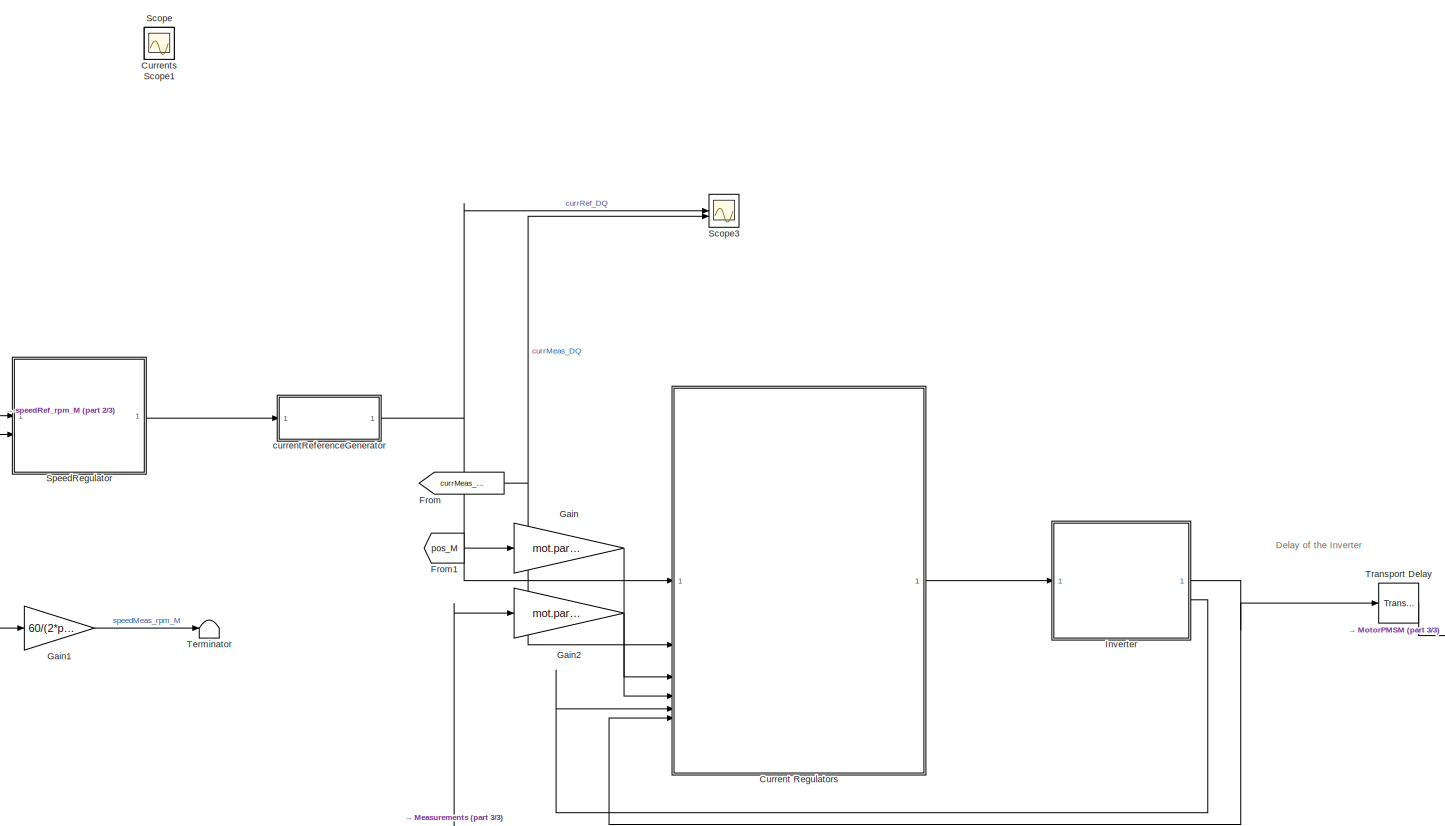
[diagram: root canvas - part 1/3, center side, full height]
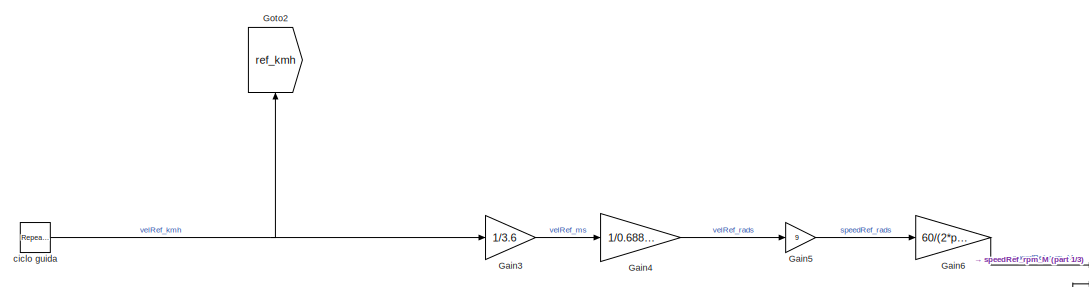
[diagram: root canvas - part 2/3, top left region]
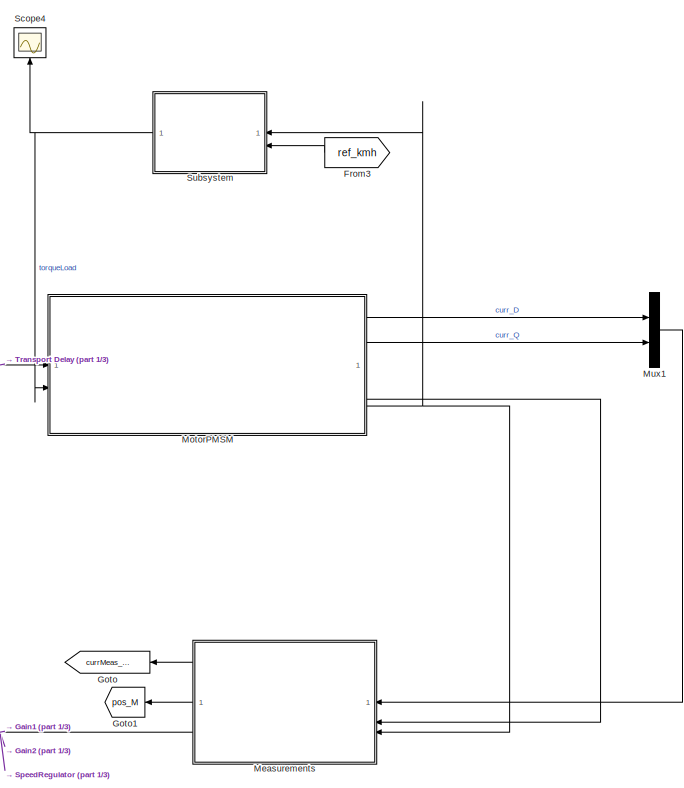
[diagram: root canvas - part 3/3, middle right region]
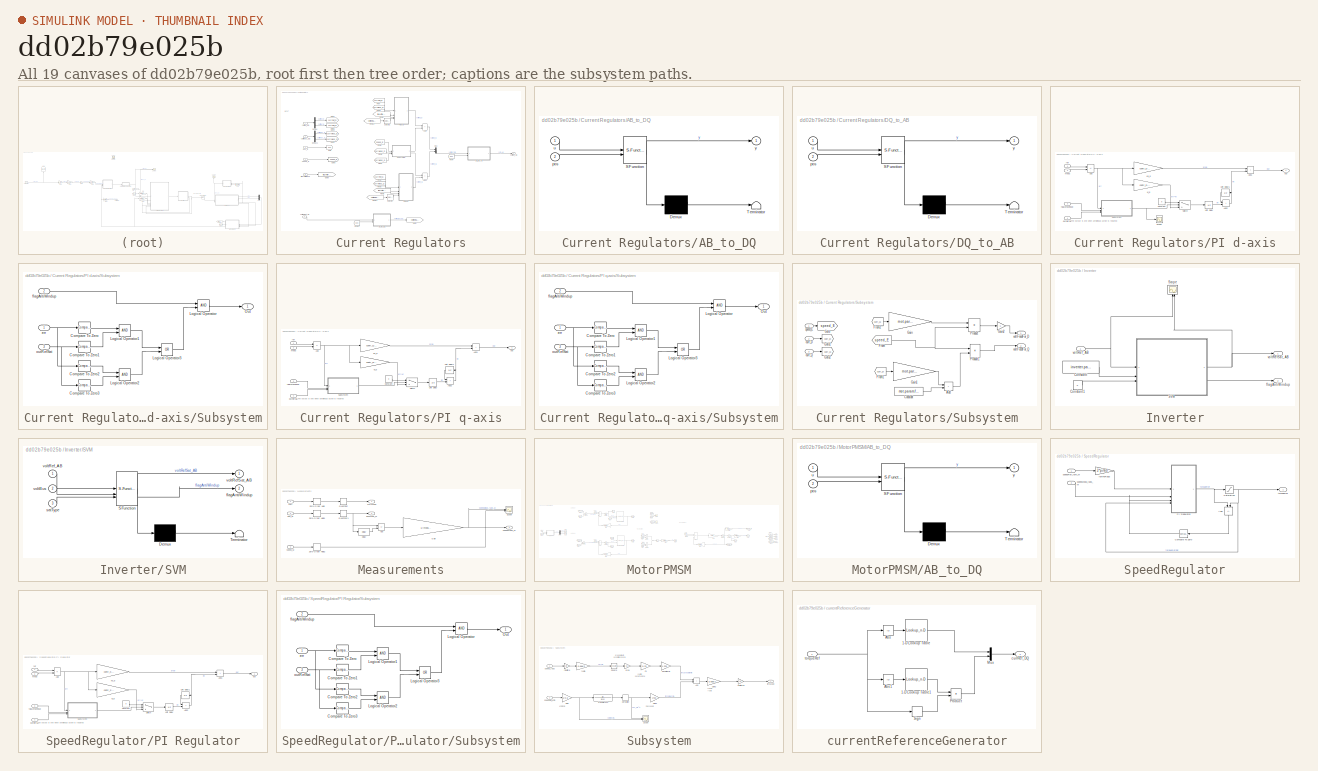
[diagram: thumbnail index - all 19 canvases of the model, root first then tree order]
MODEL slx_dd02b79e025b
KIND model
CONFIG AbsTol = auto
CONFIG EnableMultiTasking = off
CONFIG FixedStep = auto
CONFIG MaxStep = 1e-3
CONFIG MinStep = auto
CONFIG RelTol = 1e-3
CONFIG SampleTimeConstraint = Unconstrained
CONFIG SolverName = VariableStepAuto
CONFIG StartTime = 0.0
CONFIG StopTime = 30
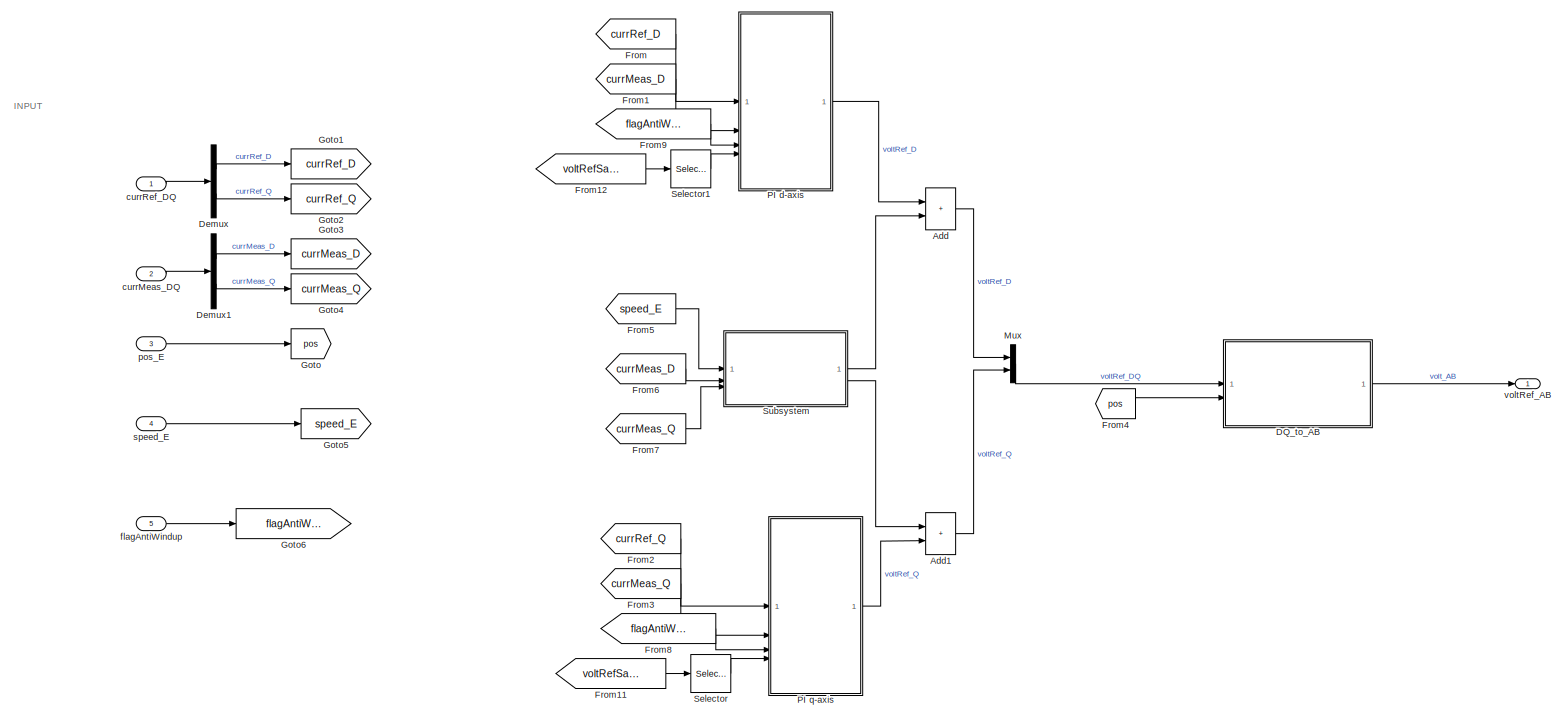
[diagram: Current Regulators - part 1/2, most of the canvas]
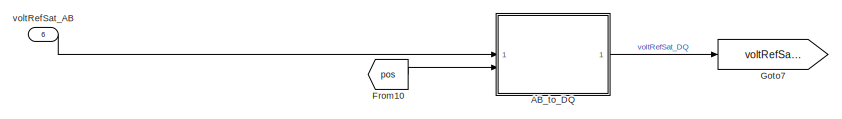
[diagram: Current Regulators - part 2/2, bottom center region]
BLOCK [SubSystem] Current Regulators
BLOCK [SubSystem] Current Regulators/AB_to_DQ
  ErrorFcn = Stateflow.Translate.translate
  PermitHierarchicalResolution = ExplicitOnly
  SFBlockType = MATLAB Function
  TreatAsAtomicUnit = on
BLOCK [Demux] Current Regulators/AB_to_DQ/ Demux 
  Outputs = 1
BLOCK [S-Function] Current Regulators/AB_to_DQ/ SFunction 
  EnableBusSupport = on
  FunctionName = sf_sfun
  PortCounts = [2 2]
  SFcnIsStateOwnerBlock = off
  SFunctionDeploymentMode = off
  Tag = Stateflow S-Function 4
BLOCK [Terminator] Current Regulators/AB_to_DQ/ Terminator 
BLOCK [Inport] Current Regulators/AB_to_DQ/pos
  Port = 2
BLOCK [Inport] Current Regulators/AB_to_DQ/u
BLOCK [Outport] Current Regulators/AB_to_DQ/y
BLOCK [Sum] Current Regulators/Add
  IconShape = rectangular
BLOCK [Sum] Current Regulators/Add1
  IconShape = rectangular
BLOCK [SubSystem] Current Regulators/DQ_to_AB
  ErrorFcn = Stateflow.Translate.translate
  PermitHierarchicalResolution = ExplicitOnly
  SFBlockType = MATLAB Function
  TreatAsAtomicUnit = on
BLOCK [Demux] Current Regulators/DQ_to_AB/ Demux 
  Outputs = 1
BLOCK [S-Function] Current Regulators/DQ_to_AB/ SFunction 
  EnableBusSupport = on
  FunctionName = sf_sfun
  PortCounts = [2 2]
  SFcnIsStateOwnerBlock = off
  SFunctionDeploymentMode = off
  Tag = Stateflow S-Function 3
BLOCK [Terminator] Current Regulators/DQ_to_AB/ Terminator 
BLOCK [Inport] Current Regulators/DQ_to_AB/pos
  Port = 2
BLOCK [Inport] Current Regulators/DQ_to_AB/u
BLOCK [Outport] Current Regulators/DQ_to_AB/y
BLOCK [Demux] Current Regulators/Demux
  Outputs = 2
BLOCK [Demux] Current Regulators/Demux1
  Outputs = 2
BLOCK [From] Current Regulators/From
  GotoTag = currRef_D
BLOCK [From] Current Regulators/From1
  GotoTag = currMeas_D
BLOCK [From] Current Regulators/From10
  GotoTag = pos
BLOCK [From] Current Regulators/From11
  GotoTag = voltRefSat_DQ
BLOCK [From] Current Regulators/From12
  GotoTag = voltRefSat_DQ
BLOCK [From] Current Regulators/From2
  GotoTag = currRef_Q
BLOCK [From] Current Regulators/From3
  GotoTag = currMeas_Q
BLOCK [From] Current Regulators/From4
  GotoTag = pos
BLOCK [From] Current Regulators/From5
  GotoTag = speed_E
BLOCK [From] Current Regulators/From6
  GotoTag = currMeas_D
BLOCK [From] Current Regulators/From7
  GotoTag = currMeas_Q
BLOCK [From] Current Regulators/From8
  GotoTag = flagAntiWIndup
BLOCK [From] Current Regulators/From9
  GotoTag = flagAntiWIndup
BLOCK [Goto] Current Regulators/Goto
  GotoTag = pos
BLOCK [Goto] Current Regulators/Goto1
  GotoTag = currRef_D
BLOCK [Goto] Current Regulators/Goto2
  GotoTag = currRef_Q
BLOCK [Goto] Current Regulators/Goto3
  GotoTag = currMeas_D
BLOCK [Goto] Current Regulators/Goto4
  GotoTag = currMeas_Q
BLOCK [Goto] Current Regulators/Goto5
  GotoTag = speed_E
BLOCK [Goto] Current Regulators/Goto6
  GotoTag = flagAntiWIndup
BLOCK [Goto] Current Regulators/Goto7
  GotoTag = voltRefSat_DQ
BLOCK [Mux] Current Regulators/Mux
  DisplayOption = bar
  Inputs = 2
BLOCK [SubSystem] Current Regulators/PI d-axis
BLOCK [Sum] Current Regulators/PI d-axis/Add
  IconShape = rectangular
  Inputs = +-
BLOCK [Sum] Current Regulators/PI d-axis/Add1
  IconShape = rectangular
BLOCK [Sum] Current Regulators/PI d-axis/Add2
  IconShape = rectangular
BLOCK [Constant] Current Regulators/PI d-axis/Constant
  Value = 0
BLOCK [Scope] Current Regulators/PI d-axis/Scope
  Floating = off
  NumInputPorts = 1
  ScopeSpecificationString = Simulink.scopes.TimeScopeBlockCfg('CurrentConfiguration', extmgr.ConfigurationSet(extmgr.Configuration('Core','General UI',true),extmgr.Configuration('Core','Source UI',true),extmgr.Configuration('Sources','WiredSimulink',true,'DataLoggingVariableName','ScopeData2'),extmgr.Configuration('Visuals','Time Domain',true,'SerializedDisplays',{struct('MinYLimReal','0.91289','MaxYLimReal','1.07157','YLabe...<+1528ch>
BLOCK [SubSystem] Current Regulators/PI d-axis/Subsystem
BLOCK [Reference] Current Regulators/PI d-axis/Subsystem/Compare To Zero  REF=simulink/Logic and Bit
Operations/Compare
To Zero
  SourceBlock = simulink/Logic and Bit\nOperations/Compare\nTo Zero
  SourceType = Compare To Zero
BLOCK [Reference] Current Regulators/PI d-axis/Subsystem/Compare To Zero1  REF=simulink/Logic and Bit
Operations/Compare
To Zero
  SourceBlock = simulink/Logic and Bit\nOperations/Compare\nTo Zero
  SourceType = Compare To Zero
BLOCK [Reference] Current Regulators/PI d-axis/Subsystem/Compare To Zero2  REF=simulink/Logic and Bit
Operations/Compare
To Zero
  SourceBlock = simulink/Logic and Bit\nOperations/Compare\nTo Zero
  SourceType = Compare To Zero
BLOCK [Reference] Current Regulators/PI d-axis/Subsystem/Compare To Zero3  REF=simulink/Logic and Bit
Operations/Compare
To Zero
  SourceBlock = simulink/Logic and Bit\nOperations/Compare\nTo Zero
  SourceType = Compare To Zero
BLOCK [Logic] Current Regulators/PI d-axis/Subsystem/Logical Operator
  AllPortsSameDT = off
  OutDataTypeStr = boolean
BLOCK [Logic] Current Regulators/PI d-axis/Subsystem/Logical Operator1
  AllPortsSameDT = off
  OutDataTypeStr = boolean
BLOCK [Logic] Current Regulators/PI d-axis/Subsystem/Logical Operator2
  AllPortsSameDT = off
  OutDataTypeStr = boolean
BLOCK [Logic] Current Regulators/PI d-axis/Subsystem/Logical Operator3
  AllPortsSameDT = off
  Operator = OR
  OutDataTypeStr = boolean
BLOCK [Outport] Current Regulators/PI d-axis/Subsystem/Out
BLOCK [Inport] Current Regulators/PI d-axis/Subsystem/err
BLOCK [Inport] Current Regulators/PI d-axis/Subsystem/flagAntiWindup
  Port = 2
BLOCK [Inport] Current Regulators/PI d-axis/Subsystem/outRefSat
  Port = 3
BLOCK [Switch] Current Regulators/PI d-axis/Switch
  Criteria = u2 > Threshold
  InputSameDT = off
  SaturateOnIntegerOverflow = off
  Threshold = 0.1
BLOCK [UnitDelay] Current Regulators/PI d-axis/Unit Delay
  HasFrameUpgradeWarning = on
  SampleTime = -1
BLOCK [UnitDelay] Current Regulators/PI d-axis/Unit Delay1
  HasFrameUpgradeWarning = on
  NameLocation = top
  SampleTime = -1
BLOCK [Inport] Current Regulators/PI d-axis/flagAntiWindup
  Port = 3
BLOCK [Gain] Current Regulators/PI d-axis/ki_d
  Gain = contr_D.param.ki
BLOCK [Gain] Current Regulators/PI d-axis/kp_d
  Gain = contr_D.param.kp
BLOCK [Inport] Current Regulators/PI d-axis/meas
  Port = 2
BLOCK [Outport] Current Regulators/PI d-axis/out
BLOCK [Inport] Current Regulators/PI d-axis/outRefSat
  Port = 4
BLOCK [Inport] Current Regulators/PI d-axis/ref
BLOCK [SubSystem] Current Regulators/PI q-axis
BLOCK [Sum] Current Regulators/PI q-axis/Add
  IconShape = rectangular
  Inputs = +-
BLOCK [Sum] Current Regulators/PI q-axis/Add1
  IconShape = rectangular
BLOCK [Sum] Current Regulators/PI q-axis/Add2
  IconShape = rectangular
BLOCK [Constant] Current Regulators/PI q-axis/Constant
  Value = 0
BLOCK [SubSystem] Current Regulators/PI q-axis/Subsystem
BLOCK [Reference] Current Regulators/PI q-axis/Subsystem/Compare To Zero  REF=simulink/Logic and Bit
Operations/Compare
To Zero
  SourceBlock = simulink/Logic and Bit\nOperations/Compare\nTo Zero
  SourceType = Compare To Zero
BLOCK [Reference] Current Regulators/PI q-axis/Subsystem/Compare To Zero1  REF=simulink/Logic and Bit
Operations/Compare
To Zero
  SourceBlock = simulink/Logic and Bit\nOperations/Compare\nTo Zero
  SourceType = Compare To Zero
BLOCK [Reference] Current Regulators/PI q-axis/Subsystem/Compare To Zero2  REF=simulink/Logic and Bit
Operations/Compare
To Zero
  SourceBlock = simulink/Logic and Bit\nOperations/Compare\nTo Zero
  SourceType = Compare To Zero
BLOCK [Reference] Current Regulators/PI q-axis/Subsystem/Compare To Zero3  REF=simulink/Logic and Bit
Operations/Compare
To Zero
  SourceBlock = simulink/Logic and Bit\nOperations/Compare\nTo Zero
  SourceType = Compare To Zero
BLOCK [Logic] Current Regulators/PI q-axis/Subsystem/Logical Operator
  AllPortsSameDT = off
  OutDataTypeStr = boolean
BLOCK [Logic] Current Regulators/PI q-axis/Subsystem/Logical Operator1
  AllPortsSameDT = off
  OutDataTypeStr = boolean
BLOCK [Logic] Current Regulators/PI q-axis/Subsystem/Logical Operator2
  AllPortsSameDT = off
  OutDataTypeStr = boolean
BLOCK [Logic] Current Regulators/PI q-axis/Subsystem/Logical Operator3
  AllPortsSameDT = off
  Operator = OR
  OutDataTypeStr = boolean
BLOCK [Outport] Current Regulators/PI q-axis/Subsystem/Out
BLOCK [Inport] Current Regulators/PI q-axis/Subsystem/err
BLOCK [Inport] Current Regulators/PI q-axis/Subsystem/flagAntiWindup
  Port = 2
BLOCK [Inport] Current Regulators/PI q-axis/Subsystem/outRefSat
  Port = 3
BLOCK [Switch] Current Regulators/PI q-axis/Switch
  Criteria = u2 > Threshold
  InputSameDT = off
  SaturateOnIntegerOverflow = off
  Threshold = 0.1
BLOCK [UnitDelay] Current Regulators/PI q-axis/Unit Delay
  HasFrameUpgradeWarning = on
  SampleTime = -1
BLOCK [UnitDelay] Current Regulators/PI q-axis/Unit Delay1
  HasFrameUpgradeWarning = on
  NameLocation = top
  SampleTime = -1
BLOCK [Inport] Current Regulators/PI q-axis/flagAntiWindup
  Port = 3
BLOCK [Gain] Current Regulators/PI q-axis/ki_d
  Gain = contr_Q.param.ki
BLOCK [Gain] Current Regulators/PI q-axis/kp_d
  Gain = contr_Q.param.kp
BLOCK [Inport] Current Regulators/PI q-axis/meas
  Port = 2
BLOCK [Outport] Current Regulators/PI q-axis/out
BLOCK [Inport] Current Regulators/PI q-axis/outRefSat
  Port = 4
BLOCK [Inport] Current Regulators/PI q-axis/ref
BLOCK [Selector] Current Regulators/Selector
  IndexOptions = Index vector (dialog)
  Indices = [2]
  InputPortWidth = 2
  OutputSizes = 1
BLOCK [Selector] Current Regulators/Selector1
  IndexOptions = Index vector (dialog)
  Indices = [1]
  InputPortWidth = 2
  OutputSizes = 1
BLOCK [SubSystem] Current Regulators/Subsystem
BLOCK [Sum] Current Regulators/Subsystem/Add
  IconShape = rectangular
BLOCK [Constant] Current Regulators/Subsystem/Constant
  Value = mot.param.fluxPM
BLOCK [From] Current Regulators/Subsystem/From
  GotoTag = speed_E
BLOCK [From] Current Regulators/Subsystem/From1
  GotoTag = curr_D
BLOCK [From] Current Regulators/Subsystem/From2
  GotoTag = curr_Q
BLOCK [Gain] Current Regulators/Subsystem/Gain
  Gain = mot.param.indApp_Q
BLOCK [Gain] Current Regulators/Subsystem/Gain1
  Gain = mot.param.indApp_D
BLOCK [Gain] Current Regulators/Subsystem/Gain2
  Gain = -1
BLOCK [Goto] Current Regulators/Subsystem/Goto
  GotoTag = speed_E
BLOCK [Goto] Current Regulators/Subsystem/Goto1
  GotoTag = curr_D
BLOCK [Goto] Current Regulators/Subsystem/Goto2
  GotoTag = curr_Q
BLOCK [Product] Current Regulators/Subsystem/Product
BLOCK [Product] Current Regulators/Subsystem/Product1
BLOCK [Inport] Current Regulators/Subsystem/curr_D
  Port = 2
BLOCK [Inport] Current Regulators/Subsystem/curr_Q
  Port = 3
BLOCK [Inport] Current Regulators/Subsystem/speed_E
BLOCK [Outport] Current Regulators/Subsystem/voltFeedFor_D
BLOCK [Outport] Current Regulators/Subsystem/voltFeedFor_Q
  Port = 2
BLOCK [Inport] Current Regulators/currMeas_DQ
  Port = 2
BLOCK [Inport] Current Regulators/currRef_DQ
BLOCK [Inport] Current Regulators/flagAntiWindup
  Port = 5
BLOCK [Inport] Current Regulators/pos_E
  Port = 3
BLOCK [Inport] Current Regulators/speed_E
  Port = 4
BLOCK [Inport] Current Regulators/voltRefSat_AB
  Port = 6
BLOCK [Outport] Current Regulators/voltRef_AB
BLOCK [Scope] Currents
  Floating = off
  IOType = viewer
  NumInputPorts = 1
  ScopeSpecificationString = Simulink.scopes.TimeScopeBlockCfg('CurrentConfiguration', extmgr.ConfigurationSet(extmgr.Configuration('Core','General UI',true),extmgr.Configuration('Core','Source UI',true),extmgr.Configuration('Sources','WiredSimulink',true,'DataLoggingVariableName','ScopeData2'),extmgr.Configuration('Visuals','Time Domain',true,'SerializedDisplays',{struct('MinYLimReal','-0.46656','MaxYLimReal','1.58376','YLab...<+2189ch>
BLOCK [From] From
  GotoTag = currMeas_DQ
BLOCK [From] From1
  GotoTag = pos_M
BLOCK [From] From3
  GotoTag = ref_kmh
  NameLocation = top
BLOCK [Gain] Gain
  Gain = mot.param.pp
BLOCK [Gain] Gain1
  Gain = 60/(2*pi)
BLOCK [Gain] Gain2
  Gain = mot.param.pp
BLOCK [Gain] Gain3
  Gain = 1/3.6
BLOCK [Gain] Gain4
  Gain = 1/0.688/2
BLOCK [Gain] Gain5
  Gain = 9
BLOCK [Gain] Gain6
  Gain = 60/(2*pi)
BLOCK [Goto] Goto
  GotoTag = currMeas_DQ
  NameLocation = top
BLOCK [Goto] Goto1
  GotoTag = pos_M
  NameLocation = top
BLOCK [Goto] Goto2
  GotoTag = ref_kmh
  NameLocation = right
BLOCK [SubSystem] Inverter
BLOCK [Constant] Inverter/Constant
  Value = inverter.param.voltBus
BLOCK [Constant] Inverter/Constant1
  Value = 0
BLOCK [SubSystem] Inverter/SVM
  ErrorFcn = Stateflow.Translate.translate
  PermitHierarchicalResolution = ExplicitOnly
  SFBlockType = MATLAB Function
  TreatAsAtomicUnit = on
BLOCK [Demux] Inverter/SVM/ Demux 
  Outputs = 1
BLOCK [S-Function] Inverter/SVM/ SFunction 
  EnableBusSupport = on
  FunctionName = sf_sfun
  Parameters = inverter
  PortCounts = [3 3]
  SFcnIsStateOwnerBlock = off
  SFunctionDeploymentMode = off
  Tag = Stateflow S-Function 2
BLOCK [Terminator] Inverter/SVM/ Terminator 
BLOCK [Outport] Inverter/SVM/flagAntiWindup
  Port = 2
BLOCK [Inport] Inverter/SVM/satType
  Port = 3
BLOCK [Inport] Inverter/SVM/voltBus
  Port = 2
BLOCK [Outport] Inverter/SVM/voltRefSat_AB
BLOCK [Inport] Inverter/SVM/voltRef_AB
BLOCK [Scope] Inverter/Scope
  Floating = off
  NameLocation = right
  NumInputPorts = 2
  ScopeSpecificationString = Simulink.scopes.TimeScopeBlockCfg('CurrentConfiguration', extmgr.ConfigurationSet(extmgr.Configuration('Core','General UI',true),extmgr.Configuration('Core','Source UI',true),extmgr.Configuration('Sources','WiredSimulink',true,'DataLoggingVariableName','ScopeData1'),extmgr.Configuration('Visuals','Time Domain',true,'SerializedDisplays',{struct('MinYLimReal','-437.86301','MaxYLimReal','479.85412','...<+1670ch>
BLOCK [Outport] Inverter/flagAntiWindup
  Port = 2
BLOCK [Outport] Inverter/voltRefSat_AB
BLOCK [Inport] Inverter/voltRef_AB
BLOCK [SubSystem] Measurements
  NameLocation = top
BLOCK [Sum] Measurements/Add
  IconShape = rectangular
  Inputs = +-
BLOCK [Delay] Measurements/Delay
  DelayLength = meas.speed.n_tabs
  InputPortMap = u0
BLOCK [Gain] Measurements/Gain
  Gain = 1/(meas.speed.n_tabs*inverter.param.timePWM)
BLOCK [Quantizer] Measurements/Quantizer
  QuantizationInterval = meas.curr.quant
BLOCK [Quantizer] Measurements/Quantizer1
  QuantizationInterval = meas.pos.quant
BLOCK [Scope] Measurements/Scope
  Floating = off
  NumInputPorts = 2
  ScopeSpecificationString = Simulink.scopes.TimeScopeBlockCfg('CurrentConfiguration', extmgr.ConfigurationSet(extmgr.Configuration('Core','General UI',true),extmgr.Configuration('Core','Source UI',true),extmgr.Configuration('Sources','WiredSimulink',true,'DataLoggingVariableName','ScopeData1'),extmgr.Configuration('Visuals','Time Domain',true,'SerializedDisplays',{struct('MinYLimReal','25.49394','MaxYLimReal','95.83458','YLa...<+1574ch>
BLOCK [ZeroOrderHold] Measurements/Zero-Order Hold
  SampleTime = inverter.param.timePWM
BLOCK [ZeroOrderHold] Measurements/Zero-Order Hold1
  SampleTime = inverter.param.timePWM
BLOCK [ZeroOrderHold] Measurements/Zero-Order Hold2
  SampleTime = inverter.param.timePWM
BLOCK [Inport] Measurements/curr
BLOCK [Outport] Measurements/currMeas
BLOCK [Outport] Measurements/posMeas_M
  Port = 2
BLOCK [Inport] Measurements/pos_M
  Port = 2
BLOCK [Outport] Measurements/speedMeas_M
  Port = 3
BLOCK [Inport] Measurements/speed_M
  Port = 3
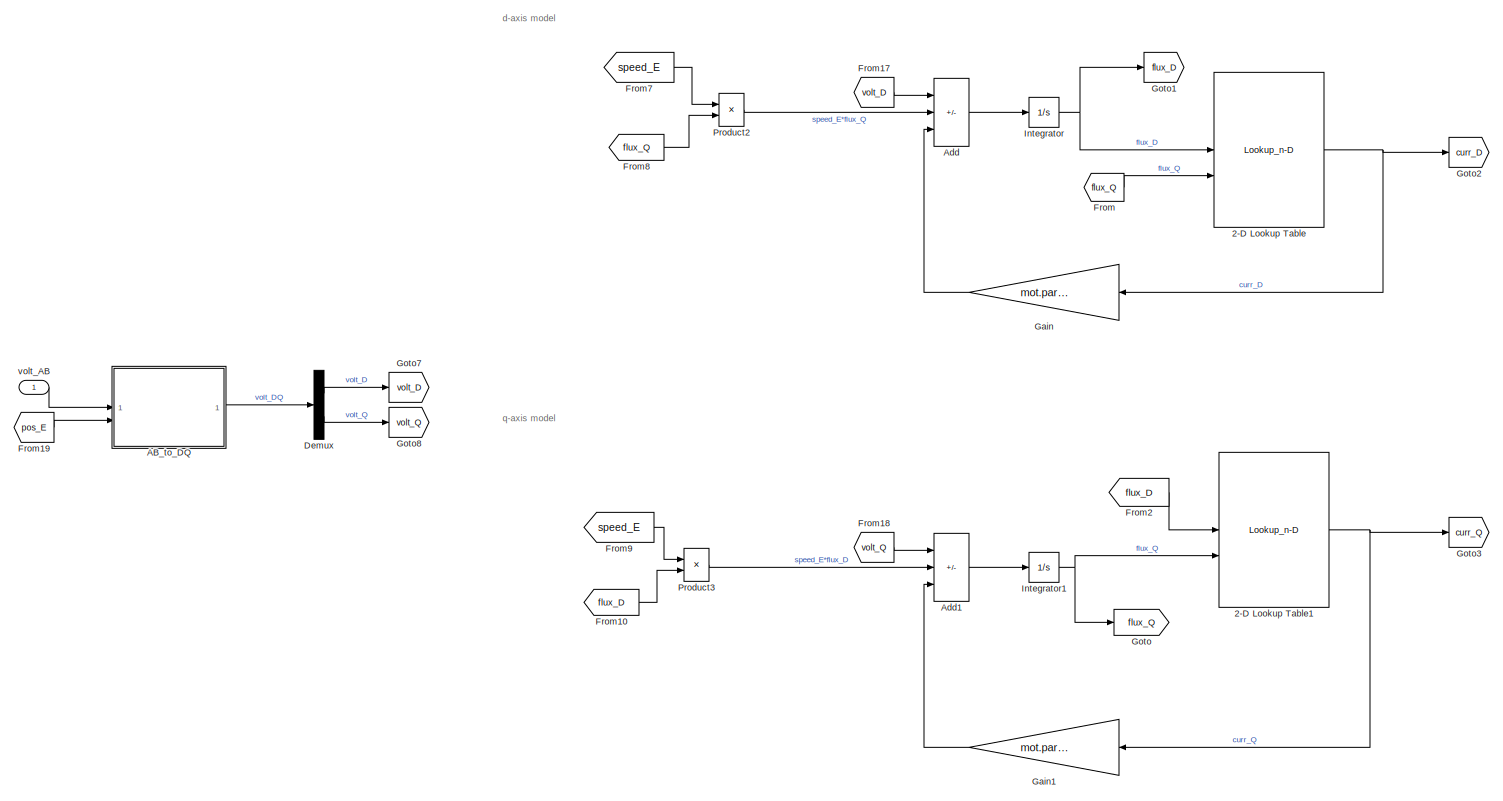
[diagram: MotorPMSM - part 1/3, left side, full height]
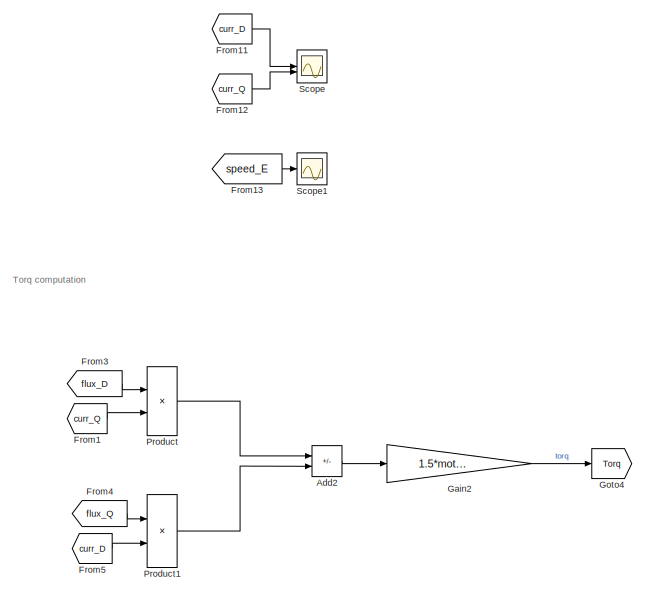
[diagram: MotorPMSM - part 2/3, central region]
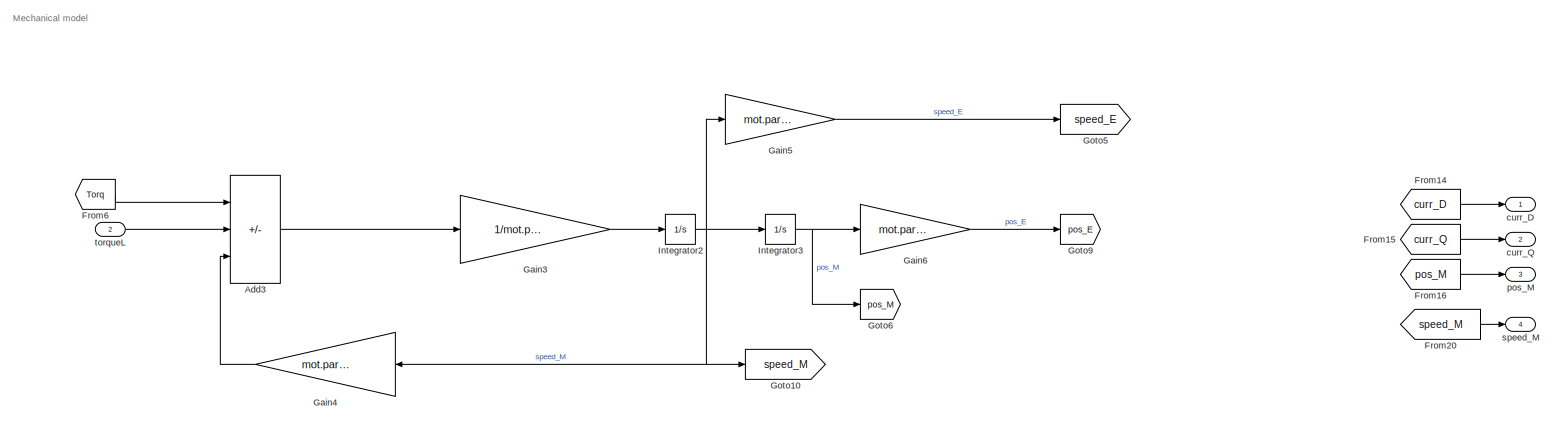
[diagram: MotorPMSM - part 3/3, middle right region]
BLOCK [SubSystem] MotorPMSM
BLOCK [Lookup_n-D] MotorPMSM/2-D Lookup Table
  BreakpointsForDimension1 = mot.maps.fluxVec_D
  BreakpointsForDimension2 = mot.maps.fluxVec_Q
  InputPortMap = u0,u1
  InternalRulePriority = Speed
  RndMeth = Simplest
  Table = mot.maps.currMap_D'
BLOCK [Lookup_n-D] MotorPMSM/2-D Lookup Table1
  BreakpointsForDimension1 = mot.maps.fluxVec_D
  BreakpointsForDimension2 = mot.maps.fluxVec_Q
  InputPortMap = u0,u1
  InternalRulePriority = Speed
  RndMeth = Simplest
  Table = mot.maps.currMap_Q'
BLOCK [SubSystem] MotorPMSM/AB_to_DQ
  ErrorFcn = Stateflow.Translate.translate
  PermitHierarchicalResolution = ExplicitOnly
  SFBlockType = MATLAB Function
  TreatAsAtomicUnit = on
BLOCK [Demux] MotorPMSM/AB_to_DQ/ Demux 
  Outputs = 1
BLOCK [S-Function] MotorPMSM/AB_to_DQ/ SFunction 
  EnableBusSupport = on
  FunctionName = sf_sfun
  PortCounts = [2 2]
  SFcnIsStateOwnerBlock = off
  SFunctionDeploymentMode = off
  Tag = Stateflow S-Function 1
BLOCK [Terminator] MotorPMSM/AB_to_DQ/ Terminator 
BLOCK [Inport] MotorPMSM/AB_to_DQ/pos
  Port = 2
BLOCK [Inport] MotorPMSM/AB_to_DQ/u
BLOCK [Outport] MotorPMSM/AB_to_DQ/y
BLOCK [Sum] MotorPMSM/Add
  IconShape = rectangular
  Inputs = ++-
BLOCK [Sum] MotorPMSM/Add1
  IconShape = rectangular
  Inputs = +--
BLOCK [Sum] MotorPMSM/Add2
  IconShape = rectangular
  Inputs = +-
BLOCK [Sum] MotorPMSM/Add3
  IconShape = rectangular
  Inputs = +--
BLOCK [Demux] MotorPMSM/Demux
  Outputs = 2
BLOCK [From] MotorPMSM/From
  GotoTag = flux_Q
BLOCK [From] MotorPMSM/From1
  GotoTag = curr_Q
BLOCK [From] MotorPMSM/From10
  GotoTag = flux_D
BLOCK [From] MotorPMSM/From11
  GotoTag = curr_D
BLOCK [From] MotorPMSM/From12
  GotoTag = curr_Q
BLOCK [From] MotorPMSM/From13
  GotoTag = speed_E
BLOCK [From] MotorPMSM/From14
  GotoTag = curr_D
BLOCK [From] MotorPMSM/From15
  GotoTag = curr_Q
BLOCK [From] MotorPMSM/From16
  GotoTag = pos_M
BLOCK [From] MotorPMSM/From17
  GotoTag = volt_D
BLOCK [From] MotorPMSM/From18
  GotoTag = volt_Q
BLOCK [From] MotorPMSM/From19
  GotoTag = pos_E
BLOCK [From] MotorPMSM/From2
  GotoTag = flux_D
BLOCK [From] MotorPMSM/From20
  GotoTag = speed_M
BLOCK [From] MotorPMSM/From3
  GotoTag = flux_D
BLOCK [From] MotorPMSM/From4
  GotoTag = flux_Q
BLOCK [From] MotorPMSM/From5
  GotoTag = curr_D
BLOCK [From] MotorPMSM/From6
  GotoTag = Torq
BLOCK [From] MotorPMSM/From7
  GotoTag = speed_E
BLOCK [From] MotorPMSM/From8
  GotoTag = flux_Q
BLOCK [From] MotorPMSM/From9
  GotoTag = speed_E
BLOCK [Gain] MotorPMSM/Gain
  Gain = mot.param.resistance
  NameLocation = top
BLOCK [Gain] MotorPMSM/Gain1
  Gain = mot.param.resistance
  NameLocation = top
BLOCK [Gain] MotorPMSM/Gain2
  Gain = 1.5*mot.param.pp
BLOCK [Gain] MotorPMSM/Gain3
  Gain = 1/mot.param.inertiaM
BLOCK [Gain] MotorPMSM/Gain4
  Gain = mot.param.frictionM
  NameLocation = top
BLOCK [Gain] MotorPMSM/Gain5
  Gain = mot.param.pp
BLOCK [Gain] MotorPMSM/Gain6
  Gain = mot.param.pp
BLOCK [Goto] MotorPMSM/Goto
  GotoTag = flux_Q
BLOCK [Goto] MotorPMSM/Goto1
  GotoTag = flux_D
BLOCK [Goto] MotorPMSM/Goto10
  GotoTag = speed_M
BLOCK [Goto] MotorPMSM/Goto2
  GotoTag = curr_D
BLOCK [Goto] MotorPMSM/Goto3
  GotoTag = curr_Q
BLOCK [Goto] MotorPMSM/Goto4
  GotoTag = Torq
BLOCK [Goto] MotorPMSM/Goto5
  GotoTag = speed_E
BLOCK [Goto] MotorPMSM/Goto6
  GotoTag = pos_M
BLOCK [Goto] MotorPMSM/Goto7
  GotoTag = volt_D
BLOCK [Goto] MotorPMSM/Goto8
  GotoTag = volt_Q
BLOCK [Goto] MotorPMSM/Goto9
  GotoTag = pos_E
BLOCK [Integrator] MotorPMSM/Integrator
  InitialCondition = mot.param.fluxPM
BLOCK [Integrator] MotorPMSM/Integrator1
BLOCK [Integrator] MotorPMSM/Integrator2
BLOCK [Integrator] MotorPMSM/Integrator3
BLOCK [Product] MotorPMSM/Product
BLOCK [Product] MotorPMSM/Product1
BLOCK [Product] MotorPMSM/Product2
BLOCK [Product] MotorPMSM/Product3
BLOCK [Scope] MotorPMSM/Scope
  Floating = off
  NumInputPorts = 2
  ScopeSpecificationString = Simulink.scopes.TimeScopeBlockCfg('CurrentConfiguration', extmgr.ConfigurationSet(extmgr.Configuration('Core','General UI',true),extmgr.Configuration('Core','Source UI',true),extmgr.Configuration('Sources','WiredSimulink',true),extmgr.Configuration('Visuals','Time Domain',true,'SerializedDisplays',{struct('MinYLimReal','-144.76125','MaxYLimReal','269.72079','YLabelReal','','MinYLimMag',' 0.00000',...<+1488ch>
BLOCK [Scope] MotorPMSM/Scope1
  Floating = off
  NumInputPorts = 1
  ScopeSpecificationString = Simulink.scopes.TimeScopeBlockCfg('CurrentConfiguration', extmgr.ConfigurationSet(extmgr.Configuration('Core','General UI',true),extmgr.Configuration('Core','Source UI',true),extmgr.Configuration('Sources','WiredSimulink',true,'DataLoggingVariableName','ScopeData1'),extmgr.Configuration('Visuals','Time Domain',true,'SerializedDisplays',{struct('MinYLimReal','-24.32184','MaxYLimReal','192.89041','Y...<+1495ch>
BLOCK [Outport] MotorPMSM/curr_D
BLOCK [Outport] MotorPMSM/curr_Q
  Port = 2
BLOCK [Outport] MotorPMSM/pos_M
  Port = 3
BLOCK [Outport] MotorPMSM/speed_M
  Port = 4
BLOCK [Inport] MotorPMSM/torqueL
  Port = 2
BLOCK [Inport] MotorPMSM/volt_AB
BLOCK [Mux] Mux1
  DisplayOption = bar
  Inputs = 2
BLOCK [Scope] Scope
  Floating = off
  IOType = viewer
  NumInputPorts = 1
  ScopeSpecificationString = Simulink.scopes.TimeScopeBlockCfg('CurrentConfiguration', extmgr.ConfigurationSet(extmgr.Configuration('Core','General UI',true),extmgr.Configuration('Core','Source UI',true),extmgr.Configuration('Sources','WiredSimulink',true,'DataLoggingVariableName','ScopeData1'),extmgr.Configuration('Visuals','Time Domain',true,'SerializedDisplays',{struct('MinYLimReal','-270.3277','MaxYLimReal','246.34185','Y...<+1682ch>
BLOCK [Scope] Scope1
  Floating = off
  IOType = viewer
  NumInputPorts = 1
  ScopeSpecificationString = Simulink.scopes.TimeScopeBlockCfg('CurrentConfiguration', extmgr.ConfigurationSet(extmgr.Configuration('Core','General UI',true),extmgr.Configuration('Core','Source UI',true),extmgr.Configuration('Sources','WiredSimulink',true,'DataLoggingVariableName','ScopeData1'),extmgr.Configuration('Visuals','Time Domain',true,'SerializedDisplays',{struct('MinYLimReal','-76.35498','MaxYLimReal','599.3042','YL...<+1625ch>
BLOCK [Scope] Scope3
  Floating = off
  NumInputPorts = 2
  ScopeSpecificationString = Simulink.scopes.TimeScopeBlockCfg('CurrentConfiguration', extmgr.ConfigurationSet(extmgr.Configuration('Core','General UI',true),extmgr.Configuration('Core','Source UI',true),extmgr.Configuration('Sources','WiredSimulink',true,'DataLoggingVariableName','ScopeData2'),extmgr.Configuration('Visuals','Time Domain',true,'SerializedDisplays',{struct('MinYLimReal','-34.04366','MaxYLimReal','106.44178','Y...<+1680ch>
BLOCK [Scope] Scope4
  Floating = off
  NameLocation = right
  NumInputPorts = 1
  ScopeSpecificationString = Simulink.scopes.TimeScopeBlockCfg('CurrentConfiguration', extmgr.ConfigurationSet(extmgr.Configuration('Core','General UI',true),extmgr.Configuration('Core','Source UI',true),extmgr.Configuration('Sources','WiredSimulink',true,'DataLoggingVariableName','ScopeData3'),extmgr.Configuration('Visuals','Time Domain',true,'SerializedDisplays',{struct('MinYLimReal','-14.33239','MaxYLimReal','93.35341','YL...<+1517ch>
BLOCK [SubSystem] SpeedRegulator
BLOCK [Sum] SpeedRegulator/Add
  IconShape = rectangular
  Inputs = +-
  NameLocation = left
BLOCK [Reference] SpeedRegulator/Compare To Zero  REF=simulink/Logic and Bit
Operations/Compare
To Zero
  NameLocation = top
  SourceBlock = simulink/Logic and Bit\nOperations/Compare\nTo Zero
  SourceType = Compare To Zero
BLOCK [SubSystem] SpeedRegulator/PI Regulator
BLOCK [Sum] SpeedRegulator/PI Regulator/Add
  IconShape = rectangular
  Inputs = +-
BLOCK [Sum] SpeedRegulator/PI Regulator/Add1
  IconShape = rectangular
BLOCK [Sum] SpeedRegulator/PI Regulator/Add2
  IconShape = rectangular
BLOCK [Constant] SpeedRegulator/PI Regulator/Constant
  Value = 0
BLOCK [SubSystem] SpeedRegulator/PI Regulator/Subsystem
BLOCK [Reference] SpeedRegulator/PI Regulator/Subsystem/Compare To Zero  REF=simulink/Logic and Bit
Operations/Compare
To Zero
  SourceBlock = simulink/Logic and Bit\nOperations/Compare\nTo Zero
  SourceType = Compare To Zero
BLOCK [Reference] SpeedRegulator/PI Regulator/Subsystem/Compare To Zero1  REF=simulink/Logic and Bit
Operations/Compare
To Zero
  SourceBlock = simulink/Logic and Bit\nOperations/Compare\nTo Zero
  SourceType = Compare To Zero
BLOCK [Reference] SpeedRegulator/PI Regulator/Subsystem/Compare To Zero2  REF=simulink/Logic and Bit
Operations/Compare
To Zero
  SourceBlock = simulink/Logic and Bit\nOperations/Compare\nTo Zero
  SourceType = Compare To Zero
BLOCK [Reference] SpeedRegulator/PI Regulator/Subsystem/Compare To Zero3  REF=simulink/Logic and Bit
Operations/Compare
To Zero
  SourceBlock = simulink/Logic and Bit\nOperations/Compare\nTo Zero
  SourceType = Compare To Zero
BLOCK [Logic] SpeedRegulator/PI Regulator/Subsystem/Logical Operator
  AllPortsSameDT = off
  OutDataTypeStr = boolean
BLOCK [Logic] SpeedRegulator/PI Regulator/Subsystem/Logical Operator1
  AllPortsSameDT = off
  OutDataTypeStr = boolean
BLOCK [Logic] SpeedRegulator/PI Regulator/Subsystem/Logical Operator2
  AllPortsSameDT = off
  OutDataTypeStr = boolean
BLOCK [Logic] SpeedRegulator/PI Regulator/Subsystem/Logical Operator3
  AllPortsSameDT = off
  Operator = OR
  OutDataTypeStr = boolean
BLOCK [Outport] SpeedRegulator/PI Regulator/Subsystem/Out
BLOCK [Inport] SpeedRegulator/PI Regulator/Subsystem/err
BLOCK [Inport] SpeedRegulator/PI Regulator/Subsystem/flagAntiWindup
  Port = 2
BLOCK [Inport] SpeedRegulator/PI Regulator/Subsystem/outRefSat
  Port = 3
BLOCK [Switch] SpeedRegulator/PI Regulator/Switch
  Criteria = u2 > Threshold
  InputSameDT = off
  SaturateOnIntegerOverflow = off
  Threshold = 0.1
BLOCK [UnitDelay] SpeedRegulator/PI Regulator/Unit Delay
  HasFrameUpgradeWarning = on
  SampleTime = -1
BLOCK [UnitDelay] SpeedRegulator/PI Regulator/Unit Delay1
  HasFrameUpgradeWarning = on
  NameLocation = top
  SampleTime = -1
BLOCK [Inport] SpeedRegulator/PI Regulator/flagAntiWindup
  Port = 3
BLOCK [Gain] SpeedRegulator/PI Regulator/ki_d
  Gain = contr_Speed.param.ki
BLOCK [Gain] SpeedRegulator/PI Regulator/kp_d
  Gain = contr_Speed.param.kp
BLOCK [Inport] SpeedRegulator/PI Regulator/meas
  Port = 2
BLOCK [Outport] SpeedRegulator/PI Regulator/out
BLOCK [Inport] SpeedRegulator/PI Regulator/outRefSat
  Port = 4
BLOCK [Inport] SpeedRegulator/PI Regulator/ref
BLOCK [Saturate] SpeedRegulator/Saturation
  LowerLimit = contr_Speed.param.outMin
  UpperLimit = contr_Speed.param.outMax
BLOCK [Gain] SpeedRegulator/rpmToRads
  Gain = 2*pi/60
BLOCK [Inport] SpeedRegulator/speedMeas_rads_M
  Port = 2
BLOCK [Inport] SpeedRegulator/speedRef_rpm_M
BLOCK [Outport] SpeedRegulator/torqueRef
BLOCK [SubSystem] Subsystem
  NameLocation = top
BLOCK [Sum] Subsystem/Add
  IconShape = rectangular
BLOCK [Gain] Subsystem/Cx
  Gain = 0.23
BLOCK [Derivative] Subsystem/Derivative
BLOCK [Gain] Subsystem/Gain
  Gain = 1/3.6
BLOCK [Gain] Subsystem/Gain1
  Gain = 1750
BLOCK [Gain] Subsystem/Gain2
  Gain = 0.688/2
BLOCK [Scope] Subsystem/Scope
  Floating = off
  NumInputPorts = 2
  ScopeSpecificationString = Simulink.scopes.TimeScopeBlockCfg('CurrentConfiguration', extmgr.ConfigurationSet(extmgr.Configuration('Core','General UI',true),extmgr.Configuration('Core','Source UI',true),extmgr.Configuration('Sources','WiredSimulink',true,'DataLoggingVariableName','ScopeData1'),extmgr.Configuration('Visuals','Time Domain',true,'SerializedDisplays',{struct('MinYLimReal','-3.0422','MaxYLimReal','14.07259','YLab...<+1525ch>
BLOCK [Math] Subsystem/Square
  Operator = square
BLOCK [TransferFcn] Subsystem/Transfer Fcn
  Denominator = [1 1 1]
BLOCK [Gain] Subsystem/area
  Gain = 2.2
BLOCK [Gain] Subsystem/densità aria 
  Gain = 1.225
BLOCK [Gain] Subsystem/riduttore
  Gain = 1/9
BLOCK [Gain] Subsystem/riduttore2
  Gain = 1/9
BLOCK [Gain] Subsystem/ruota
  Gain = 0.688/2
BLOCK [Inport] Subsystem/speedRef_kmh
  Port = 2
BLOCK [Inport] Subsystem/speed_rads
BLOCK [Outport] Subsystem/torqLoad
BLOCK [Terminator] Terminator
BLOCK [TransportDelay] Transport Delay
  DelayTime = 0.5*inverter.param.timePWM
BLOCK [Reference] ciclo guida  REF=simulink/Sources/Repeating
Sequence
  SourceBlock = simulink/Sources/Repeating\nSequence
  SourceType = Repeating table
BLOCK [SubSystem] currentReferenceGenerator
BLOCK [Lookup_n-D] currentReferenceGenerator/1-D Lookup Table
  BreakpointsForDimension1 = mot.maps.MTPA.torqVec
  InputPortMap = u0
  InternalRulePriority = Speed
  NumberOfTableDimensions = 1
  RndMeth = Simplest
  Table = mot.maps.MTPA.currVec_D
BLOCK [Lookup_n-D] currentReferenceGenerator/1-D Lookup Table1
  BreakpointsForDimension1 = mot.maps.MTPA.torqVec
  InputPortMap = u0
  InternalRulePriority = Speed
  NumberOfTableDimensions = 1
  RndMeth = Simplest
  Table = mot.maps.MTPA.currVec_Q
BLOCK [Abs] currentReferenceGenerator/Abs
  SaturateOnIntegerOverflow = off
BLOCK [Abs] currentReferenceGenerator/Abs1
  SaturateOnIntegerOverflow = off
BLOCK [Mux] currentReferenceGenerator/Mux
  DisplayOption = bar
  Inputs = 2
BLOCK [Product] currentReferenceGenerator/Product
BLOCK [Signum] currentReferenceGenerator/Sign
BLOCK [Outport] currentReferenceGenerator/currRef_DQ
BLOCK [Inport] currentReferenceGenerator/torqueRef
ANNOTATION (root): Delay of the Inverter
ANNOTATION Current Regulators: INPUT
ANNOTATION Current Regulators/PI d-axis: The output is one when antiwindup action is required
ANNOTATION Current Regulators/PI q-axis: The output is one when antiwindup action is required
ANNOTATION MotorPMSM: Mechanical model
ANNOTATION MotorPMSM: Torq computation
ANNOTATION MotorPMSM: d-axis model
ANNOTATION MotorPMSM: q-axis model
ANNOTATION SpeedRegulator/PI Regulator: The output is one when antiwindup action is required
ANNOTATION Subsystem: area dell'auto a contatto con aria
ANNOTATION Subsystem: coeff. di penetrazione
ANNOTATION Subsystem: kmh to ms
ANNOTATION Subsystem: massa auto
ANNOTATION Subsystem: raggio ruota
LINE Current Regulators/AB_to_DQ:1 -> Current Regulators/Goto7:1
LINE Current Regulators/Add1:1 -> Current Regulators/Mux:2
LINE Current Regulators/Add:1 -> Current Regulators/Mux:1
LINE Current Regulators/DQ_to_AB:1 -> Current Regulators/voltRef_AB:1
LINE Current Regulators/Demux1:1 -> Current Regulators/Goto3:1
LINE Current Regulators/Demux1:2 -> Current Regulators/Goto4:1
LINE Current Regulators/Demux:1 -> Current Regulators/Goto1:1
LINE Current Regulators/Demux:2 -> Current Regulators/Goto2:1
LINE Current Regulators/From10:1 -> Current Regulators/AB_to_DQ:2
LINE Current Regulators/From11:1 -> Current Regulators/Selector:1
LINE Current Regulators/From12:1 -> Current Regulators/Selector1:1
LINE Current Regulators/From1:1 -> Current Regulators/PI d-axis:2
LINE Current Regulators/From2:1 -> Current Regulators/PI q-axis:1
LINE Current Regulators/From3:1 -> Current Regulators/PI q-axis:2
LINE Current Regulators/From4:1 -> Current Regulators/DQ_to_AB:2
LINE Current Regulators/From5:1 -> Current Regulators/Subsystem:1
LINE Current Regulators/From6:1 -> Current Regulators/Subsystem:2
LINE Current Regulators/From7:1 -> Current Regulators/Subsystem:3
LINE Current Regulators/From8:1 -> Current Regulators/PI q-axis:3
LINE Current Regulators/From9:1 -> Current Regulators/PI d-axis:3
LINE Current Regulators/From:1 -> Current Regulators/PI d-axis:1
LINE Current Regulators/Mux:1 -> Current Regulators/DQ_to_AB:1
LINE Current Regulators/PI d-axis/Add1:1 -> Current Regulators/PI d-axis/out:1
NET Current Regulators/PI d-axis/Add2:1 -> Current Regulators/PI d-axis/Add1:2, Current Regulators/PI d-axis/Unit Delay1:1
NET Current Regulators/PI d-axis/Add:1 -> Current Regulators/PI d-axis/Subsystem:1, Current Regulators/PI d-axis/ki_d:1, Current Regulators/PI d-axis/kp_d:1
LINE Current Regulators/PI d-axis/Constant:1 -> Current Regulators/PI d-axis/Switch:1
LINE Current Regulators/PI d-axis/Subsystem/Compare To Zero1:1 -> Current Regulators/PI d-axis/Subsystem/Logical Operator1:2
LINE Current Regulators/PI d-axis/Subsystem/Compare To Zero2:1 -> Current Regulators/PI d-axis/Subsystem/Logical Operator2:1
LINE Current Regulators/PI d-axis/Subsystem/Compare To Zero3:1 -> Current Regulators/PI d-axis/Subsystem/Logical Operator2:2
LINE Current Regulators/PI d-axis/Subsystem/Compare To Zero:1 -> Current Regulators/PI d-axis/Subsystem/Logical Operator1:1
LINE Current Regulators/PI d-axis/Subsystem/Logical Operator1:1 -> Current Regulators/PI d-axis/Subsystem/Logical Operator3:1
LINE Current Regulators/PI d-axis/Subsystem/Logical Operator2:1 -> Current Regulators/PI d-axis/Subsystem/Logical Operator3:2
LINE Current Regulators/PI d-axis/Subsystem/Logical Operator3:1 -> Current Regulators/PI d-axis/Subsystem/Logical Operator:2
LINE Current Regulators/PI d-axis/Subsystem/Logical Operator:1 -> Current Regulators/PI d-axis/Subsystem/Out:1
NET Current Regulators/PI d-axis/Subsystem/err:1 -> Current Regulators/PI d-axis/Subsystem/Compare To Zero2:1, Current Regulators/PI d-axis/Subsystem/Compare To Zero:1
LINE Current Regulators/PI d-axis/Subsystem/flagAntiWindup:1 -> Current Regulators/PI d-axis/Subsystem/Logical Operator:1
NET Current Regulators/PI d-axis/Subsystem/outRefSat:1 -> Current Regulators/PI d-axis/Subsystem/Compare To Zero1:1, Current Regulators/PI d-axis/Subsystem/Compare To Zero3:1
NET Current Regulators/PI d-axis/Subsystem:1 -> Current Regulators/PI d-axis/Scope:1, Current Regulators/PI d-axis/Switch:2
LINE Current Regulators/PI d-axis/Switch:1 -> Current Regulators/PI d-axis/Unit Delay:1
LINE Current Regulators/PI d-axis/Unit Delay1:1 -> Current Regulators/PI d-axis/Add2:1
LINE Current Regulators/PI d-axis/Unit Delay:1 -> Current Regulators/PI d-axis/Add2:2
LINE Current Regulators/PI d-axis/flagAntiWindup:1 -> Current Regulators/PI d-axis/Subsystem:2
LINE Current Regulators/PI d-axis/ki_d:1 -> Current Regulators/PI d-axis/Switch:3
LINE Current Regulators/PI d-axis/kp_d:1 -> Current Regulators/PI d-axis/Add1:1
LINE Current Regulators/PI d-axis/meas:1 -> Current Regulators/PI d-axis/Add:2
LINE Current Regulators/PI d-axis/outRefSat:1 -> Current Regulators/PI d-axis/Subsystem:3
LINE Current Regulators/PI d-axis/ref:1 -> Current Regulators/PI d-axis/Add:1
LINE Current Regulators/PI d-axis:1 -> Current Regulators/Add:1
LINE Current Regulators/PI q-axis/Add1:1 -> Current Regulators/PI q-axis/out:1
NET Current Regulators/PI q-axis/Add2:1 -> Current Regulators/PI q-axis/Add1:2, Current Regulators/PI q-axis/Unit Delay1:1
NET Current Regulators/PI q-axis/Add:1 -> Current Regulators/PI q-axis/Subsystem:1, Current Regulators/PI q-axis/ki_d:1, Current Regulators/PI q-axis/kp_d:1
LINE Current Regulators/PI q-axis/Constant:1 -> Current Regulators/PI q-axis/Switch:1
LINE Current Regulators/PI q-axis/Subsystem/Compare To Zero1:1 -> Current Regulators/PI q-axis/Subsystem/Logical Operator1:2
LINE Current Regulators/PI q-axis/Subsystem/Compare To Zero2:1 -> Current Regulators/PI q-axis/Subsystem/Logical Operator2:1
LINE Current Regulators/PI q-axis/Subsystem/Compare To Zero3:1 -> Current Regulators/PI q-axis/Subsystem/Logical Operator2:2
LINE Current Regulators/PI q-axis/Subsystem/Compare To Zero:1 -> Current Regulators/PI q-axis/Subsystem/Logical Operator1:1
LINE Current Regulators/PI q-axis/Subsystem/Logical Operator1:1 -> Current Regulators/PI q-axis/Subsystem/Logical Operator3:1
LINE Current Regulators/PI q-axis/Subsystem/Logical Operator2:1 -> Current Regulators/PI q-axis/Subsystem/Logical Operator3:2
LINE Current Regulators/PI q-axis/Subsystem/Logical Operator3:1 -> Current Regulators/PI q-axis/Subsystem/Logical Operator:2
LINE Current Regulators/PI q-axis/Subsystem/Logical Operator:1 -> Current Regulators/PI q-axis/Subsystem/Out:1
NET Current Regulators/PI q-axis/Subsystem/err:1 -> Current Regulators/PI q-axis/Subsystem/Compare To Zero2:1, Current Regulators/PI q-axis/Subsystem/Compare To Zero:1
LINE Current Regulators/PI q-axis/Subsystem/flagAntiWindup:1 -> Current Regulators/PI q-axis/Subsystem/Logical Operator:1
NET Current Regulators/PI q-axis/Subsystem/outRefSat:1 -> Current Regulators/PI q-axis/Subsystem/Compare To Zero1:1, Current Regulators/PI q-axis/Subsystem/Compare To Zero3:1
LINE Current Regulators/PI q-axis/Subsystem:1 -> Current Regulators/PI q-axis/Switch:2
LINE Current Regulators/PI q-axis/Switch:1 -> Current Regulators/PI q-axis/Unit Delay:1
LINE Current Regulators/PI q-axis/Unit Delay1:1 -> Current Regulators/PI q-axis/Add2:1
LINE Current Regulators/PI q-axis/Unit Delay:1 -> Current Regulators/PI q-axis/Add2:2
LINE Current Regulators/PI q-axis/flagAntiWindup:1 -> Current Regulators/PI q-axis/Subsystem:2
LINE Current Regulators/PI q-axis/ki_d:1 -> Current Regulators/PI q-axis/Switch:3
LINE Current Regulators/PI q-axis/kp_d:1 -> Current Regulators/PI q-axis/Add1:1
LINE Current Regulators/PI q-axis/meas:1 -> Current Regulators/PI q-axis/Add:2
LINE Current Regulators/PI q-axis/outRefSat:1 -> Current Regulators/PI q-axis/Subsystem:3
LINE Current Regulators/PI q-axis/ref:1 -> Current Regulators/PI q-axis/Add:1
LINE Current Regulators/PI q-axis:1 -> Current Regulators/Add1:2
LINE Current Regulators/Selector1:1 -> Current Regulators/PI d-axis:4
LINE Current Regulators/Selector:1 -> Current Regulators/PI q-axis:4
LINE Current Regulators/Subsystem/Add:1 -> Current Regulators/Subsystem/Product1:2
LINE Current Regulators/Subsystem/Constant:1 -> Current Regulators/Subsystem/Add:2
LINE Current Regulators/Subsystem/From1:1 -> Current Regulators/Subsystem/Gain1:1
LINE Current Regulators/Subsystem/From2:1 -> Current Regulators/Subsystem/Gain:1
NET Current Regulators/Subsystem/From:1 -> Current Regulators/Subsystem/Product1:1, Current Regulators/Subsystem/Product:2
LINE Current Regulators/Subsystem/Gain1:1 -> Current Regulators/Subsystem/Add:1
LINE Current Regulators/Subsystem/Gain2:1 -> Current Regulators/Subsystem/voltFeedFor_D:1
LINE Current Regulators/Subsystem/Gain:1 -> Current Regulators/Subsystem/Product:1
LINE Current Regulators/Subsystem/Product1:1 -> Current Regulators/Subsystem/voltFeedFor_Q:1
LINE Current Regulators/Subsystem/Product:1 -> Current Regulators/Subsystem/Gain2:1
LINE Current Regulators/Subsystem/curr_D:1 -> Current Regulators/Subsystem/Goto1:1
LINE Current Regulators/Subsystem/curr_Q:1 -> Current Regulators/Subsystem/Goto2:1
LINE Current Regulators/Subsystem/speed_E:1 -> Current Regulators/Subsystem/Goto:1
LINE Current Regulators/Subsystem:1 -> Current Regulators/Add:2
LINE Current Regulators/Subsystem:2 -> Current Regulators/Add1:1
LINE Current Regulators/currMeas_DQ:1 -> Current Regulators/Demux1:1
LINE Current Regulators/currRef_DQ:1 -> Current Regulators/Demux:1
LINE Current Regulators/flagAntiWindup:1 -> Current Regulators/Goto6:1
LINE Current Regulators/pos_E:1 -> Current Regulators/Goto:1
LINE Current Regulators/speed_E:1 -> Current Regulators/Goto5:1
LINE Current Regulators/voltRefSat_AB:1 -> Current Regulators/AB_to_DQ:1
LINE Current Regulators:1 -> Inverter:1
LINE From1:1 -> Gain:1
LINE From3:1 -> Subsystem:2
NET From:1 -> Current Regulators:2, Scope3:2
LINE Gain1:1 -> Terminator:1
LINE Gain2:1 -> Current Regulators:4
LINE Gain3:1 -> Gain4:1
LINE Gain4:1 -> Gain5:1
LINE Gain5:1 -> Gain6:1
LINE Gain6:1 -> SpeedRegulator:1
LINE Gain:1 -> Current Regulators:3
LINE Inverter/Constant1:1 -> Inverter/SVM:3
LINE Inverter/Constant:1 -> Inverter/SVM:2
NET Inverter/SVM:1 -> Inverter/Scope:2, Inverter/voltRefSat_AB:1
LINE Inverter/SVM:2 -> Inverter/flagAntiWindup:1
NET Inverter/voltRef_AB:1 -> Inverter/SVM:1, Inverter/Scope:1
NET Inverter:1 -> Current Regulators:6, Transport Delay:1
LINE Inverter:2 -> Current Regulators:5
LINE Measurements/Add:1 -> Measurements/Gain:1
LINE Measurements/Delay:1 -> Measurements/Add:2
NET Measurements/Gain:1 -> Measurements/Scope:1, Measurements/speedMeas_M:1
NET Measurements/Quantizer1:1 -> Measurements/Add:1, Measurements/Delay:1, Measurements/posMeas_M:1
LINE Measurements/Quantizer:1 -> Measurements/currMeas:1
LINE Measurements/Zero-Order Hold1:1 -> Measurements/Quantizer1:1
LINE Measurements/Zero-Order Hold2:1 -> Measurements/Scope:2
LINE Measurements/Zero-Order Hold:1 -> Measurements/Quantizer:1
LINE Measurements/curr:1 -> Measurements/Zero-Order Hold:1
LINE Measurements/pos_M:1 -> Measurements/Zero-Order Hold1:1
LINE Measurements/speed_M:1 -> Measurements/Zero-Order Hold2:1
LINE Measurements:1 -> Goto:1
LINE Measurements:2 -> Goto1:1
NET Measurements:3 -> Gain1:1, Gain2:1, SpeedRegulator:2
NET MotorPMSM/2-D Lookup Table1:1 -> MotorPMSM/Gain1:1, MotorPMSM/Goto3:1
NET MotorPMSM/2-D Lookup Table:1 -> MotorPMSM/Gain:1, MotorPMSM/Goto2:1
LINE MotorPMSM/AB_to_DQ:1 -> MotorPMSM/Demux:1
LINE MotorPMSM/Add1:1 -> MotorPMSM/Integrator1:1
LINE MotorPMSM/Add2:1 -> MotorPMSM/Gain2:1
LINE MotorPMSM/Add3:1 -> MotorPMSM/Gain3:1
LINE MotorPMSM/Add:1 -> MotorPMSM/Integrator:1
LINE MotorPMSM/Demux:1 -> MotorPMSM/Goto7:1
LINE MotorPMSM/Demux:2 -> MotorPMSM/Goto8:1
LINE MotorPMSM/From10:1 -> MotorPMSM/Product3:2
LINE MotorPMSM/From11:1 -> MotorPMSM/Scope:1
LINE MotorPMSM/From12:1 -> MotorPMSM/Scope:2
LINE MotorPMSM/From13:1 -> MotorPMSM/Scope1:1
LINE MotorPMSM/From14:1 -> MotorPMSM/curr_D:1
LINE MotorPMSM/From15:1 -> MotorPMSM/curr_Q:1
LINE MotorPMSM/From16:1 -> MotorPMSM/pos_M:1
LINE MotorPMSM/From17:1 -> MotorPMSM/Add:1
LINE MotorPMSM/From18:1 -> MotorPMSM/Add1:1
LINE MotorPMSM/From19:1 -> MotorPMSM/AB_to_DQ:2
LINE MotorPMSM/From1:1 -> MotorPMSM/Product:2
LINE MotorPMSM/From20:1 -> MotorPMSM/speed_M:1
LINE MotorPMSM/From2:1 -> MotorPMSM/2-D Lookup Table1:1
LINE MotorPMSM/From3:1 -> MotorPMSM/Product:1
LINE MotorPMSM/From4:1 -> MotorPMSM/Product1:1
LINE MotorPMSM/From5:1 -> MotorPMSM/Product1:2
LINE MotorPMSM/From6:1 -> MotorPMSM/Add3:1
LINE MotorPMSM/From7:1 -> MotorPMSM/Product2:1
LINE MotorPMSM/From8:1 -> MotorPMSM/Product2:2
LINE MotorPMSM/From9:1 -> MotorPMSM/Product3:1
LINE MotorPMSM/From:1 -> MotorPMSM/2-D Lookup Table:2
LINE MotorPMSM/Gain1:1 -> MotorPMSM/Add1:3
LINE MotorPMSM/Gain2:1 -> MotorPMSM/Goto4:1
LINE MotorPMSM/Gain3:1 -> MotorPMSM/Integrator2:1
LINE MotorPMSM/Gain4:1 -> MotorPMSM/Add3:3
LINE MotorPMSM/Gain5:1 -> MotorPMSM/Goto5:1
LINE MotorPMSM/Gain6:1 -> MotorPMSM/Goto9:1
LINE MotorPMSM/Gain:1 -> MotorPMSM/Add:3
NET MotorPMSM/Integrator1:1 -> MotorPMSM/2-D Lookup Table1:2, MotorPMSM/Goto:1
NET MotorPMSM/Integrator2:1 -> MotorPMSM/Gain4:1, MotorPMSM/Gain5:1, MotorPMSM/Goto10:1, MotorPMSM/Integrator3:1
NET MotorPMSM/Integrator3:1 -> MotorPMSM/Gain6:1, MotorPMSM/Goto6:1
NET MotorPMSM/Integrator:1 -> MotorPMSM/2-D Lookup Table:1, MotorPMSM/Goto1:1
LINE MotorPMSM/Product1:1 -> MotorPMSM/Add2:2
LINE MotorPMSM/Product2:1 -> MotorPMSM/Add:2
LINE MotorPMSM/Product3:1 -> MotorPMSM/Add1:2
LINE MotorPMSM/Product:1 -> MotorPMSM/Add2:1
LINE MotorPMSM/torqueL:1 -> MotorPMSM/Add3:2
LINE MotorPMSM/volt_AB:1 -> MotorPMSM/AB_to_DQ:1
LINE MotorPMSM:1 -> Mux1:1
LINE MotorPMSM:2 -> Mux1:2
LINE MotorPMSM:3 -> Measurements:2
NET MotorPMSM:4 -> Measurements:3, Subsystem:1
LINE Mux1:1 -> Measurements:1
LINE SpeedRegulator/Add:1 -> SpeedRegulator/Compare To Zero:1
LINE SpeedRegulator/Compare To Zero:1 -> SpeedRegulator/PI Regulator:3
LINE SpeedRegulator/PI Regulator/Add1:1 -> SpeedRegulator/PI Regulator/out:1
NET SpeedRegulator/PI Regulator/Add2:1 -> SpeedRegulator/PI Regulator/Add1:2, SpeedRegulator/PI Regulator/Unit Delay1:1
NET SpeedRegulator/PI Regulator/Add:1 -> SpeedRegulator/PI Regulator/Subsystem:1, SpeedRegulator/PI Regulator/ki_d:1, SpeedRegulator/PI Regulator/kp_d:1
LINE SpeedRegulator/PI Regulator/Constant:1 -> SpeedRegulator/PI Regulator/Switch:1
LINE SpeedRegulator/PI Regulator/Subsystem/Compare To Zero1:1 -> SpeedRegulator/PI Regulator/Subsystem/Logical Operator1:2
LINE SpeedRegulator/PI Regulator/Subsystem/Compare To Zero2:1 -> SpeedRegulator/PI Regulator/Subsystem/Logical Operator2:1
LINE SpeedRegulator/PI Regulator/Subsystem/Compare To Zero3:1 -> SpeedRegulator/PI Regulator/Subsystem/Logical Operator2:2
LINE SpeedRegulator/PI Regulator/Subsystem/Compare To Zero:1 -> SpeedRegulator/PI Regulator/Subsystem/Logical Operator1:1
LINE SpeedRegulator/PI Regulator/Subsystem/Logical Operator1:1 -> SpeedRegulator/PI Regulator/Subsystem/Logical Operator3:1
LINE SpeedRegulator/PI Regulator/Subsystem/Logical Operator2:1 -> SpeedRegulator/PI Regulator/Subsystem/Logical Operator3:2
LINE SpeedRegulator/PI Regulator/Subsystem/Logical Operator3:1 -> SpeedRegulator/PI Regulator/Subsystem/Logical Operator:2
LINE SpeedRegulator/PI Regulator/Subsystem/Logical Operator:1 -> SpeedRegulator/PI Regulator/Subsystem/Out:1
NET SpeedRegulator/PI Regulator/Subsystem/err:1 -> SpeedRegulator/PI Regulator/Subsystem/Compare To Zero2:1, SpeedRegulator/PI Regulator/Subsystem/Compare To Zero:1
LINE SpeedRegulator/PI Regulator/Subsystem/flagAntiWindup:1 -> SpeedRegulator/PI Regulator/Subsystem/Logical Operator:1
NET SpeedRegulator/PI Regulator/Subsystem/outRefSat:1 -> SpeedRegulator/PI Regulator/Subsystem/Compare To Zero1:1, SpeedRegulator/PI Regulator/Subsystem/Compare To Zero3:1
LINE SpeedRegulator/PI Regulator/Subsystem:1 -> SpeedRegulator/PI Regulator/Switch:2
LINE SpeedRegulator/PI Regulator/Switch:1 -> SpeedRegulator/PI Regulator/Unit Delay:1
LINE SpeedRegulator/PI Regulator/Unit Delay1:1 -> SpeedRegulator/PI Regulator/Add2:1
LINE SpeedRegulator/PI Regulator/Unit Delay:1 -> SpeedRegulator/PI Regulator/Add2:2
LINE SpeedRegulator/PI Regulator/flagAntiWindup:1 -> SpeedRegulator/PI Regulator/Subsystem:2
LINE SpeedRegulator/PI Regulator/ki_d:1 -> SpeedRegulator/PI Regulator/Switch:3
LINE SpeedRegulator/PI Regulator/kp_d:1 -> SpeedRegulator/PI Regulator/Add1:1
LINE SpeedRegulator/PI Regulator/meas:1 -> SpeedRegulator/PI Regulator/Add:2
LINE SpeedRegulator/PI Regulator/outRefSat:1 -> SpeedRegulator/PI Regulator/Subsystem:3
LINE SpeedRegulator/PI Regulator/ref:1 -> SpeedRegulator/PI Regulator/Add:1
NET SpeedRegulator/PI Regulator:1 -> SpeedRegulator/Add:1, SpeedRegulator/Saturation:1
NET SpeedRegulator/Saturation:1 -> SpeedRegulator/Add:2, SpeedRegulator/PI Regulator:4, SpeedRegulator/torqueRef:1
LINE SpeedRegulator/rpmToRads:1 -> SpeedRegulator/PI Regulator:1
LINE SpeedRegulator/speedMeas_rads_M:1 -> SpeedRegulator/PI Regulator:2
LINE SpeedRegulator/speedRef_rpm_M:1 -> SpeedRegulator/rpmToRads:1
LINE SpeedRegulator:1 -> currentReferenceGenerator:1
LINE Subsystem/Add:1 -> Subsystem/Gain2:1
LINE Subsystem/Cx:1 -> Subsystem/densità aria :1
NET Subsystem/Derivative:1 -> Subsystem/Gain1:1, Subsystem/Scope:1
LINE Subsystem/Gain1:1 -> Subsystem/Add:2
LINE Subsystem/Gain2:1 -> Subsystem/riduttore2:1
NET Subsystem/Gain:1 -> Subsystem/Scope:2, Subsystem/Transfer Fcn:1
LINE Subsystem/Square:1 -> Subsystem/area:1
LINE Subsystem/Transfer Fcn:1 -> Subsystem/Derivative:1
LINE Subsystem/area:1 -> Subsystem/Cx:1
LINE Subsystem/densità aria :1 -> Subsystem/Add:1
LINE Subsystem/riduttore2:1 -> Subsystem/torqLoad:1
LINE Subsystem/riduttore:1 -> Subsystem/ruota:1
LINE Subsystem/ruota:1 -> Subsystem/Square:1
LINE Subsystem/speedRef_kmh:1 -> Subsystem/Gain:1
LINE Subsystem/speed_rads:1 -> Subsystem/riduttore:1
NET Subsystem:1 -> MotorPMSM:2, Scope4:1
LINE Transport Delay:1 -> MotorPMSM:1
NET ciclo guida:1 -> Gain3:1, Goto2:1
LINE currentReferenceGenerator/1-D Lookup Table1:1 -> currentReferenceGenerator/Product:1
LINE currentReferenceGenerator/1-D Lookup Table:1 -> currentReferenceGenerator/Mux:1
LINE currentReferenceGenerator/Abs1:1 -> currentReferenceGenerator/1-D Lookup Table1:1
LINE currentReferenceGenerator/Abs:1 -> currentReferenceGenerator/1-D Lookup Table:1
LINE currentReferenceGenerator/Mux:1 -> currentReferenceGenerator/currRef_DQ:1
LINE currentReferenceGenerator/Product:1 -> currentReferenceGenerator/Mux:2
LINE currentReferenceGenerator/Sign:1 -> currentReferenceGenerator/Product:2
NET currentReferenceGenerator/torqueRef:1 -> currentReferenceGenerator/Abs1:1, currentReferenceGenerator/Abs:1, currentReferenceGenerator/Sign:1
NET currentReferenceGenerator:1 -> Current Regulators:1, Scope3:1
note: NET lines group one-source signal fan-out (src -> all destinations, sorted); 1:1 wires keep LINE
CHART MotorPMSM/AB_to_DQ states=1 transitions=1
  STATE_LABEL 'eML_blk_kernel()'
  STATE_LABEL 'SCRIPT:\nfunction y = AB2DQ(u, pos)\n% u = 2x1 vector\n% y = 2x1 vector \n% pos = position in rad \n\n% Transformation matrix \nT_AB2DQ = [cos(pos) sin(pos);...\n           -sin(pos) cos(pos)];\n\n% Get output\ny = T_AB2DQ * u ;\n'
CHART Inverter/SVM states=1 transitions=1
  STATE_LABEL 'eML_blk_kernel()'
  STATE_LABEL 'SCRIPT:\nfunction [voltRefSat_AB, flagAntiWindup] = fcn(voltRef_AB,voltBus,satType,inverter)\n%satType = 0 -> circular saturation \n%satType = 1 -> hexagonal saturation \n\nTpwm = inverter.param.timePWM;\n%%%\n%Reset flag antiwindup\nflagAntiWindup = 0;\n%% Circular saturation \nvoltRefMag_AB = sqrt(voltRef_AB(1)^2+voltRef_AB(2)^2);\nvoltBus_sqrt3 = voltBus / sqrt(3);\n\nif ((satType == 0) && (voltRefMag_AB > ...<+1481ch>'
CHART Current Regulators/DQ_to_AB states=1 transitions=1
  STATE_LABEL 'eML_blk_kernel()'
  STATE_LABEL 'SCRIPT:\nfunction y = DQ2AB(u, pos)\n% u = 2x1 vector\n% y = 2x1 vector \n% pos = position in rad \n\n% Transformation matrix \nT_DQ2AB = [cos(pos) -sin(pos);...\n           sin(pos) cos(pos)];\n\n% Get output\ny = T_DQ2AB * u ;\n'
CHART Current Regulators/AB_to_DQ states=1 transitions=1
  STATE_LABEL 'eML_blk_kernel()'
  STATE_LABEL 'SCRIPT:\nfunction y = AB2DQ(u, pos)\n% u = 2x1 vector\n% y = 2x1 vector \n% pos = position in rad \n\n% Transformation matrix \nT_AB2DQ = [cos(pos) sin(pos);...\n           -sin(pos) cos(pos)];\n\n% Get output\ny = T_AB2DQ * u ;\n'
CHART  states=0 transitions=0
CHART  states=0 transitions=0
CHART  states=0 transitions=0
CHART  states=0 transitions=0
